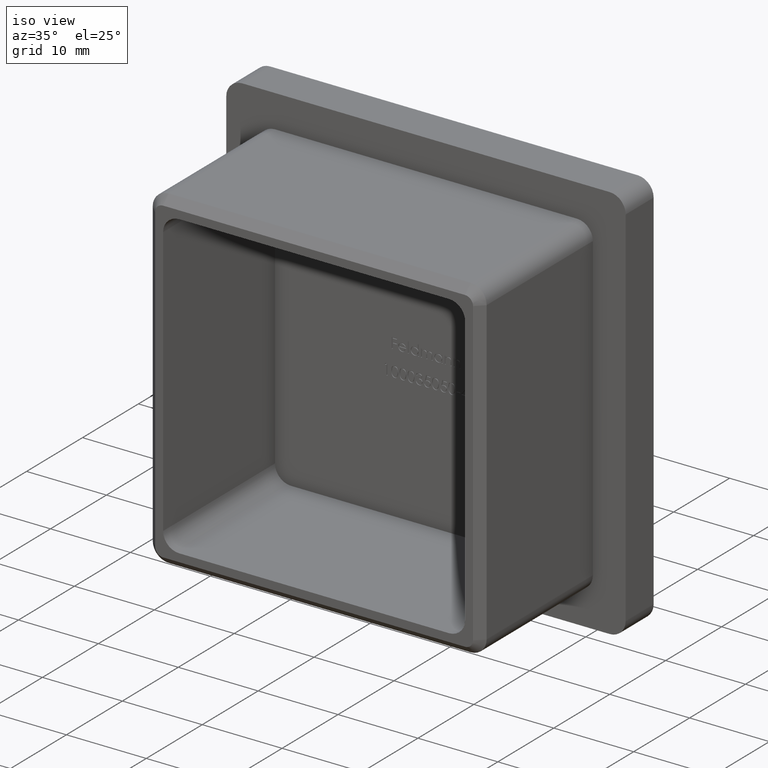
[diagram: clean part render]
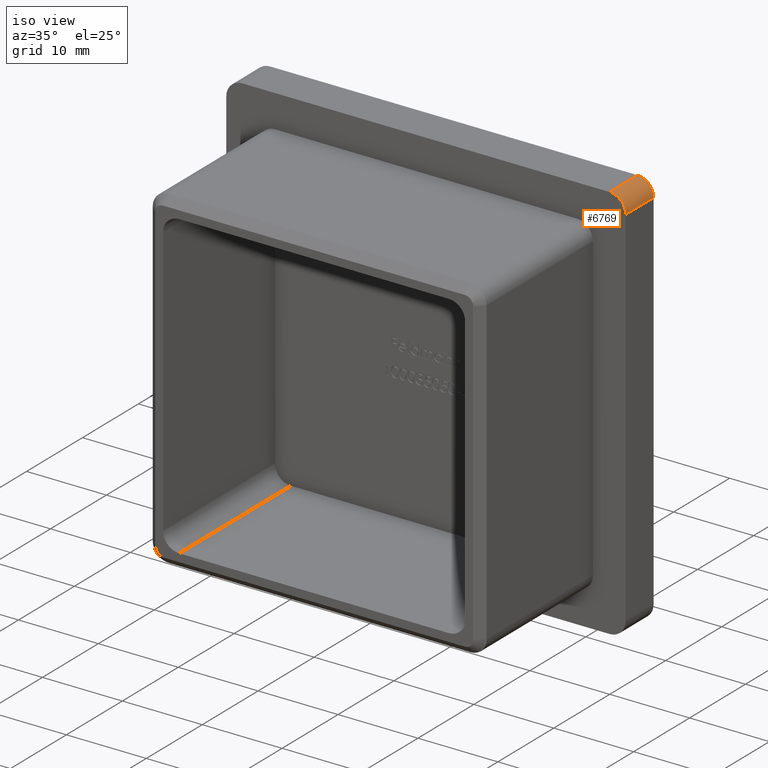
[diagram: same view with one face highlighted and labeled with its STEP entity id]
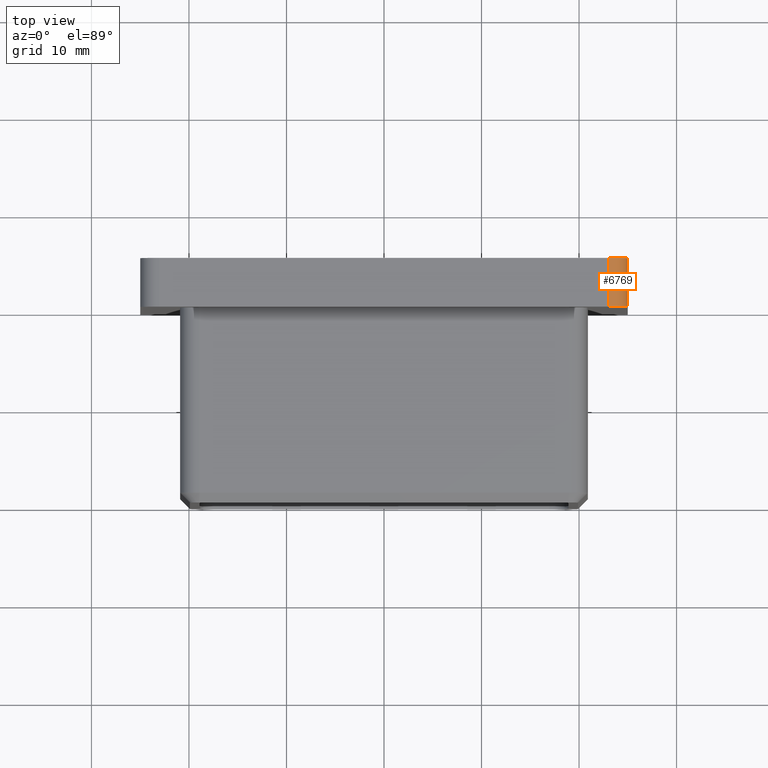
[diagram: same view with one face highlighted and labeled with its STEP entity id]
A machine part, iso view. The second image highlights one B-rep face of the part: STEP entity #6769.
A second angle (top view) of the same face is appended — the face is thin or edge-on in the first view.
In plain terms, the highlighted cylindrical surface (edge-blend (fillet) strip) has radius 2 mm, axis along (0, -1, 0).
Its self-contained STEP definition (entity closure, byte-faithful):
#401 = LINE ( 'NONE', #11419, #13125 ) ;
#1076 = CARTESIAN_POINT ( 'NONE',  ( 23.00000000000000700, 5.000000000000000000, 25.00000000000000400 ) ) ;
#1640 = VERTEX_POINT ( 'NONE', #14499 ) ;
#1841 = ORIENTED_EDGE ( 'NONE', *, *, #13477, .F. ) ;
#1845 = AXIS2_PLACEMENT_3D ( 'NONE', #4704, #13286, #5938 ) ;
#2700 = CARTESIAN_POINT ( 'NONE',  ( 25.00000000000000400, 0.0000000000000000000, 23.00000000000000400 ) ) ;
#2721 = ORIENTED_EDGE ( 'NONE', *, *, #12770, .F. ) ;
#2878 = ORIENTED_EDGE ( 'NONE', *, *, #10826, .F. ) ;
#4140 = EDGE_CURVE ( 'NONE', #1640, #8382, #7079, .T. ) ;
#4147 = FACE_OUTER_BOUND ( 'NONE', #14348, .T. ) ;
#4704 = CARTESIAN_POINT ( 'NONE',  ( 23.00000000000000700, 0.0000000000000000000, 23.00000000000000400 ) ) ;
#5339 = VECTOR ( 'NONE', #9851, 1000.000000000000000 ) ;
#5443 = AXIS2_PLACEMENT_3D ( 'NONE', #8568, #6038, #8717 ) ;
#5568 = AXIS2_PLACEMENT_3D ( 'NONE', #11331, #11390, #12608 ) ;
#5938 = DIRECTION ( 'NONE',  ( 0.0000000000000000000, 0.0000000000000000000, 1.000000000000000000 ) ) ;
#6038 = DIRECTION ( 'NONE',  ( 0.0000000000000000000, -1.000000000000000000, 0.0000000000000000000 ) ) ;
#6769 = ADVANCED_FACE ( 'NONE', ( #4147 ), #13182, .T. ) ;
#7079 = LINE ( 'NONE', #1076, #5339 ) ;
#7176 = VERTEX_POINT ( 'NONE', #10414 ) ;
#7535 = CIRCLE ( 'NONE', #1845, 1.999999999999998200 ) ;
#7893 = CARTESIAN_POINT ( 'NONE',  ( 23.00000000000000700, 5.000000000000000000, 25.00000000000000400 ) ) ;
#8382 = VERTEX_POINT ( 'NONE', #7893 ) ;
#8568 = CARTESIAN_POINT ( 'NONE',  ( 23.00000000000000700, 5.000000000000000000, 23.00000000000000400 ) ) ;
#8717 = DIRECTION ( 'NONE',  ( 0.0000000000000000000, 0.0000000000000000000, -1.000000000000000000 ) ) ;
#9851 = DIRECTION ( 'NONE',  ( -0.0000000000000000000, 1.000000000000000000, -0.0000000000000000000 ) ) ;
#10235 = DIRECTION ( 'NONE',  ( 0.0000000000000000000, -1.000000000000000000, 0.0000000000000000000 ) ) ;
#10414 = CARTESIAN_POINT ( 'NONE',  ( 25.00000000000000400, 5.000000000000000000, 23.00000000000000400 ) ) ;
#10419 = CIRCLE ( 'NONE', #5568, 1.999999999999998200 ) ;
#10826 = EDGE_CURVE ( 'NONE', #13288, #1640, #7535, .T. ) ;
#11331 = CARTESIAN_POINT ( 'NONE',  ( 23.00000000000000700, 5.000000000000000000, 23.00000000000000400 ) ) ;
#11390 = DIRECTION ( 'NONE',  ( 0.0000000000000000000, 1.000000000000000000, 0.0000000000000000000 ) ) ;
#11419 = CARTESIAN_POINT ( 'NONE',  ( 25.00000000000000400, 5.000000000000000000, 23.00000000000000400 ) ) ;
#12366 = ORIENTED_EDGE ( 'NONE', *, *, #4140, .F. ) ;
#12608 = DIRECTION ( 'NONE',  ( 0.0000000000000000000, 0.0000000000000000000, 1.000000000000000000 ) ) ;
#12770 = EDGE_CURVE ( 'NONE', #7176, #13288, #401, .T. ) ;
#13125 = VECTOR ( 'NONE', #10235, 1000.000000000000000 ) ;
#13182 = CYLINDRICAL_SURFACE ( 'NONE', #5443, 1.999999999999998200 ) ;
#13286 = DIRECTION ( 'NONE',  ( -0.0000000000000000000, -1.000000000000000000, -0.0000000000000000000 ) ) ;
#13288 = VERTEX_POINT ( 'NONE', #2700 ) ;
#13477 = EDGE_CURVE ( 'NONE', #8382, #7176, #10419, .T. ) ;
#14348 = EDGE_LOOP ( 'NONE', ( #1841, #12366, #2878, #2721 ) ) ;
#14499 = CARTESIAN_POINT ( 'NONE',  ( 23.00000000000000700, 0.0000000000000000000, 25.00000000000000400 ) ) ;